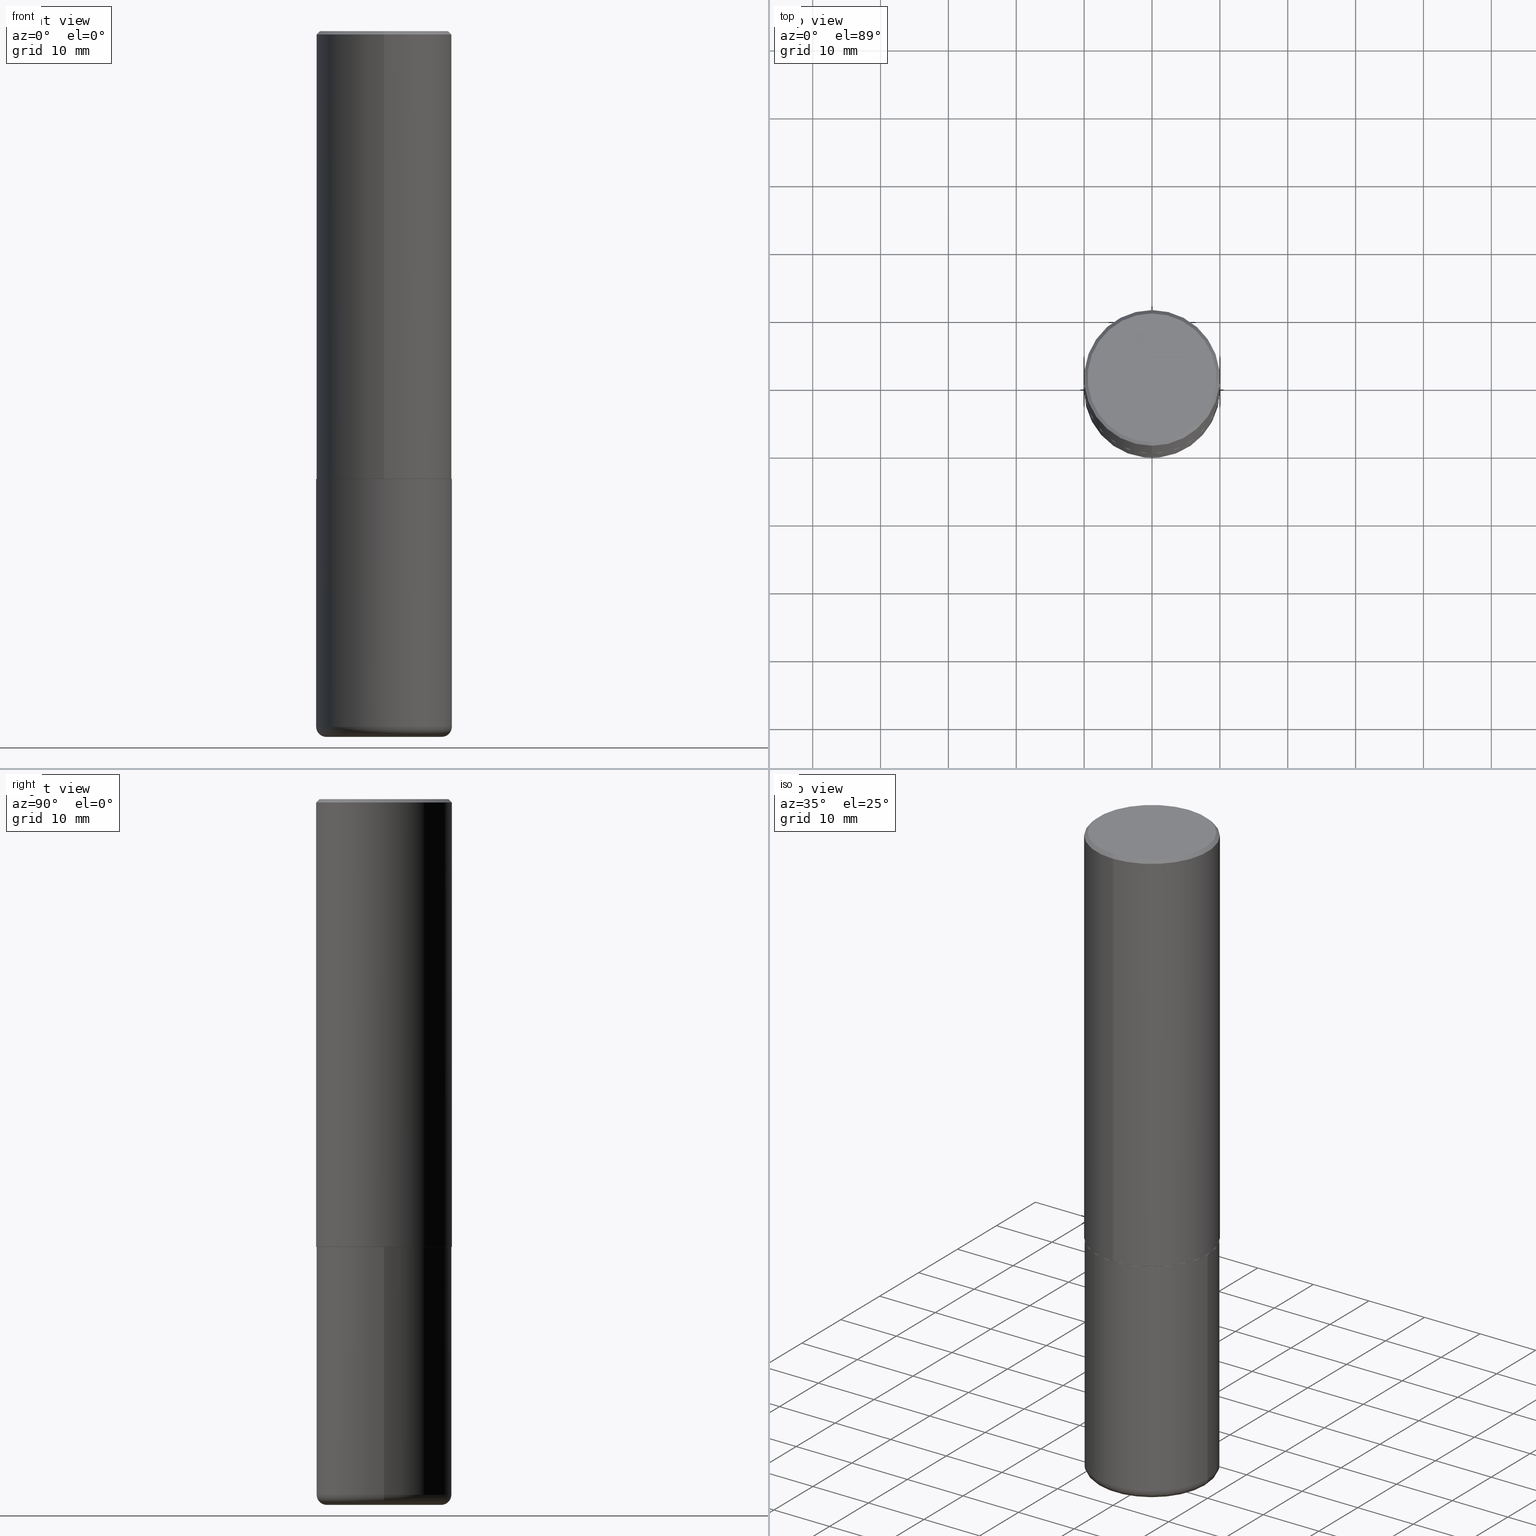
[diagram: canonical four-view strip — front | top / right | iso, engineering-drawing reading convention]
A machine part, canonical four-view strip (front | top / right | iso — engineering-drawing reading convention). The complete STEP part file that produces these views, byte-faithful:
ISO-10303-21;
HEADER;
FILE_DESCRIPTION (( 'STEP AP203' ),
    '1' );
FILE_NAME ('46923.STEP',
    '2024-03-05T08:56:37',
    ( '' ),
    ( '' ),
    'SwSTEP 2.0',
    'SolidWorks 2023',
    '' );
FILE_SCHEMA (( 'CONFIG_CONTROL_DESIGN' ));
ENDSEC;

DATA;
#1 = FACE_OUTER_BOUND ( 'NONE', #41, .T. ) ;
#2 = DIRECTION ( 'NONE',  ( 6.982962677686265133E-15, 1.000000000000000000, -3.491137977679279424E-15 ) ) ;
#3 = CARTESIAN_POINT ( 'NONE',  ( -2.632373081744935132E-15, -0.3736999999999997546, 1.514362516461610517E-15 ) ) ;
#4 = CC_DESIGN_PERSON_AND_ORGANIZATION_ASSIGNMENT ( #109, #318, ( #101 ) ) ;
#5 = AXIS2_PLACEMENT_3D ( 'NONE', #401, #110, #291 ) ;
#6 = CC_DESIGN_APPROVAL ( #410, ( #263 ) ) ;
#7 = ORIENTED_EDGE ( 'NONE', *, *, #339, .T. ) ;
#8 = DIRECTION ( 'NONE',  ( -6.982962677686265133E-15, -1.000000000000000000, 3.491137977679279424E-15 ) ) ;
#9 = CARTESIAN_POINT ( 'NONE',  ( 0.3346000000000000085, -1.663236965384708707E-14, -4.094500000000000028 ) ) ;
#10 = DIRECTION ( 'NONE',  ( 1.000000000000000000, -6.982962677686269866E-15, 0.000000000000000000 ) ) ;
#11 = LOCAL_TIME ( 3, 56, 37.00000000000000000, #223 ) ;
#12 = DIRECTION ( 'NONE',  ( 1.000000000000000000, -6.982962677686271444E-15, 0.000000000000000000 ) ) ;
#13 = ORIENTED_EDGE ( 'NONE', *, *, #126, .T. ) ;
#14 = ORIENTED_EDGE ( 'NONE', *, *, #202, .F. ) ;
#15 = DIRECTION ( 'NONE',  ( -2.445058808808776392E-29, 3.492068478421694670E-15, 1.000000000000000000 ) ) ;
#16 = APPLICATION_CONTEXT ( 'configuration controlled 3d designs of mechanical parts and assemblies' ) ;
#17 = CIRCLE ( 'NONE', #336, 0.3937000000000000499 ) ;
#18 = CONICAL_SURFACE ( 'NONE', #148, 0.3937000000000000499, 0.7853981633974476129 ) ;
#19 = CARTESIAN_POINT ( 'NONE',  ( 2.749192406205083217E-15, 0.3936999999999999389, -0.02000000000000146105 ) ) ;
#20 = EDGE_CURVE ( 'NONE', #342, #157, #78, .T. ) ;
#21 = DIRECTION ( 'NONE',  ( -6.982962677686265133E-15, -1.000000000000000000, 4.173946514383900962E-15 ) ) ;
#22 = CYLINDRICAL_SURFACE ( 'NONE', #165, 0.3937000000000000499 ) ;
#23 = APPROVAL_STATUS ( 'not_yet_approved' ) ;
#24 = AXIS2_PLACEMENT_3D ( 'NONE', #184, #240, #151 ) ;
#26 = ORIENTED_EDGE ( 'NONE', *, *, #104, .T. ) ;
#25 = CIRCLE ( 'NONE', #381, 0.3937000000000002720 ) ;
#27 = DIRECTION ( 'NONE',  ( -2.445058808808776392E-29, 3.492068478421694670E-15, 1.000000000000000000 ) ) ;
#28 = DIRECTION ( 'NONE',  ( -6.982962677686265922E-15, -1.000000000000000000, 3.492068478421695064E-15 ) ) ;
#29 = COORDINATED_UNIVERSAL_TIME_OFFSET ( 5, 0, .BEHIND. ) ;
#30 = ORIENTED_EDGE ( 'NONE', *, *, #72, .F. ) ;
#31 = ORIENTED_EDGE ( 'NONE', *, *, #126, .F. ) ;
#32 = DATE_TIME_ROLE ( 'creation_date' ) ;
#33 = ORIENTED_EDGE ( 'NONE', *, *, #273, .F. ) ;
#34 = CC_DESIGN_APPROVAL ( #204, ( #231 ) ) ;
#35 = VERTEX_POINT ( 'NONE', #50 ) ;
#36 = CALENDAR_DATE ( 2024, 5, 3 ) ;
#37 = EDGE_CURVE ( 'NONE', #176, #387, #296, .T. ) ;
#38 = CARTESIAN_POINT ( 'NONE',  ( 6.353240808808724474E-29, -9.073790734330933280E-15, -2.598400000000000265 ) ) ;
#39 = CARTESIAN_POINT ( 'NONE',  ( 2.797406750687515181E-15, 0.3937000000000001609, -1.374827359954621742E-15 ) ) ;
#40 = CARTESIAN_POINT ( 'NONE',  ( 4.890117617617573732E-31, -6.984136956843418330E-17, -0.02000000000000008715 ) ) ;
#41 = EDGE_LOOP ( 'NONE', ( #14, #123, #415, #192 ) ) ;
#42 = CARTESIAN_POINT ( 'NONE',  ( 9.868444820479501934E-29, -1.408952379476762952E-14, -4.035400000000000098 ) ) ;
#43 = AXIS2_PLACEMENT_3D ( 'NONE', #377, #15, #276 ) ;
#44 = CIRCLE ( 'NONE', #54, 0.3937000000000000499 ) ;
#45 = DIRECTION ( 'NONE',  ( 1.000000000000000000, -6.982962677686269077E-15, 4.883557194083114022E-29 ) ) ;
#46 = ADVANCED_FACE ( 'NONE', ( #66 ), #230, .F. ) ;
#47 = DIRECTION ( 'NONE',  ( -2.445058808808776111E-29, 3.492068478421695064E-15, 1.000000000000000000 ) ) ;
#48 = CARTESIAN_POINT ( 'NONE',  ( -2.749192406205084005E-15, -0.3937000000000001609, 1.374827359954621742E-15 ) ) ;
#49 = EDGE_CURVE ( 'NONE', #65, #398, #68, .T. ) ;
#50 = CARTESIAN_POINT ( 'NONE',  ( -2.749192406205021291E-15, -0.3937000000000093758, -2.597399999999999043 ) ) ;
#51 = VERTEX_POINT ( 'NONE', #82 ) ;
#52 = DIRECTION ( 'NONE',  ( -2.445468806185136597E-29, 3.491481338843145583E-15, 1.000000000000000000 ) ) ;
#53 =( NAMED_UNIT ( * ) PLANE_ANGLE_UNIT ( ) SI_UNIT ( $, .RADIAN. ) );
#54 = AXIS2_PLACEMENT_3D ( 'NONE', #99, #164, #8 ) ;
#55 = CARTESIAN_POINT ( 'NONE',  ( -0.3346000000000000085, -1.171204780091433423E-14, -4.035400000000000098 ) ) ;
#56 = CARTESIAN_POINT ( 'NONE',  ( 0.000000000000000000, 0.000000000000000000, 0.000000000000000000 ) ) ;
#57 = CARTESIAN_POINT ( 'NONE',  ( 9.868444820479501934E-29, -1.408952379476762952E-14, -4.035400000000000098 ) ) ;
#58 = EDGE_CURVE ( 'NONE', #65, #176, #380, .T. ) ;
#59 = ORIENTED_EDGE ( 'NONE', *, *, #224, .T. ) ;
#60 = DIRECTION ( 'NONE',  ( -2.445468806185136597E-29, 3.491481338843145583E-15, 1.000000000000000000 ) ) ;
#62 = ORIENTED_EDGE ( 'NONE', *, *, #190, .T. ) ;
#61 = AXIS2_PLACEMENT_3D ( 'NONE', #199, #261, #393 ) ;
#63 = FACE_OUTER_BOUND ( 'NONE', #191, .T. ) ;
#64 = APPROVAL_DATE_TIME ( #88, #204 ) ;
#65 = VERTEX_POINT ( 'NONE', #117 ) ;
#66 = FACE_OUTER_BOUND ( 'NONE', #113, .T. ) ;
#67 = APPROVAL_ROLE ( '' ) ;
#68 = CIRCLE ( 'NONE', #262, 0.3346000000000000085 ) ;
#69 = CARTESIAN_POINT ( 'NONE',  ( -5.119379194384959481E-45, 7.311571668294261102E-31, 2.093765260754239936E-16 ) ) ;
#70 = CC_DESIGN_SECURITY_CLASSIFICATION ( #263, ( #231 ) ) ;
#71 = DIRECTION ( 'NONE',  ( -2.445468806185136597E-29, 3.491481338843145583E-15, 1.000000000000000000 ) ) ;
#72 = EDGE_CURVE ( 'NONE', #51, #35, #310, .T. ) ;
#73 = DIRECTION ( 'NONE',  ( -6.982962677686266711E-15, -1.000000000000000000, 3.491481338843145583E-15 ) ) ;
#74 = AXIS2_PLACEMENT_3D ( 'NONE', #42, #260, #396 ) ;
#75 = CARTESIAN_POINT ( 'NONE',  ( 2.793854037008778575E-15, 0.3926999999999909452, -2.598400000000002041 ) ) ;
#76 = ORIENTED_EDGE ( 'NONE', *, *, #49, .T. ) ;
#77 = EDGE_CURVE ( 'NONE', #92, #322, #306, .T. ) ;
#78 = LINE ( 'NONE', #338, #79 ) ;
#79 = VECTOR ( 'NONE', #141, 39.37007874015748143 ) ;
#80 = AXIS2_PLACEMENT_3D ( 'NONE', #301, #73, #12 ) ;
#81 =( NAMED_UNIT ( * ) SI_UNIT ( $, .STERADIAN. ) SOLID_ANGLE_UNIT ( ) );
#82 = CARTESIAN_POINT ( 'NONE',  ( -2.742209443527332910E-15, -0.3927000000000090973, -2.598399999999998489 ) ) ;
#83 = CC_DESIGN_PERSON_AND_ORGANIZATION_ASSIGNMENT ( #91, #289, ( #263 ) ) ;
#84 = CARTESIAN_POINT ( 'NONE',  ( 6.353240808808724474E-29, -9.073790734330933280E-15, -2.598400000000000265 ) ) ;
#85 = EDGE_LOOP ( 'NONE', ( #163, #76, #7, #368 ) ) ;
#86 = CARTESIAN_POINT ( 'NONE',  ( -0.3937000000000000499, 2.797406750687514786E-15, -1.936584745033356735E-29 ) ) ;
#87 = DIRECTION ( 'NONE',  ( -2.445058808808776392E-29, 3.492068478421694670E-15, 1.000000000000000000 ) ) ;
#88 = DATE_AND_TIME ( #154, #217 ) ;
#90 = ORIENTED_EDGE ( 'NONE', *, *, #229, .T. ) ;
#89 = VECTOR ( 'NONE', #183, 39.37007874015748143 ) ;
#91 = PERSON_AND_ORGANIZATION ( #346, #127 ) ;
#92 = VERTEX_POINT ( 'NONE', #341 ) ;
#93 = FACE_OUTER_BOUND ( 'NONE', #243, .T. ) ;
#94 = ORIENTED_EDGE ( 'NONE', *, *, #20, .T. ) ;
#95 = DIRECTION ( 'NONE',  ( 2.445058808808776392E-29, -3.492068478421694670E-15, -1.000000000000000000 ) ) ;
#96 = CIRCLE ( 'NONE', #111, 0.3926999999999999935 ) ;
#97 = ADVANCED_FACE ( 'NONE', ( #374 ), #215, .T. ) ;
#98 = ADVANCED_FACE ( 'NONE', ( #411 ), #119, .F. ) ;
#99 = CARTESIAN_POINT ( 'NONE',  ( 4.890117617617573732E-31, -6.984136956843418330E-17, -0.02000000000000008715 ) ) ;
#100 = CARTESIAN_POINT ( 'NONE',  ( 0.3937000000000000499, -1.182145751705511584E-14, -2.598400000000000265 ) ) ;
#101 = PRODUCT ( '46923', '46923', '', ( #309 ) ) ;
#102 = AXIS2_PLACEMENT_3D ( 'NONE', #55, #175, #345 ) ;
#103 = DIRECTION ( 'NONE',  ( -2.445468806185136597E-29, 3.491481338843145583E-15, 1.000000000000000000 ) ) ;
#104 = EDGE_CURVE ( 'NONE', #387, #176, #216, .T. ) ;
#105 = VERTEX_POINT ( 'NONE', #272 ) ;
#106 = ORIENTED_EDGE ( 'NONE', *, *, #37, .T. ) ;
#107 = DIRECTION ( 'NONE',  ( -6.982962677686265133E-15, -1.000000000000000000, 4.173946514383900962E-15 ) ) ;
#108 = CC_DESIGN_PERSON_AND_ORGANIZATION_ASSIGNMENT ( #286, #152, ( #231 ) ) ;
#109 = PERSON_AND_ORGANIZATION ( #346, #127 ) ;
#110 = DIRECTION ( 'NONE',  ( -2.445468806185136597E-29, 3.491481338843145583E-15, 1.000000000000000000 ) ) ;
#111 = AXIS2_PLACEMENT_3D ( 'NONE', #84, #87, #21 ) ;
#112 = AXIS2_PLACEMENT_3D ( 'NONE', #257, #388, #153 ) ;
#113 = EDGE_LOOP ( 'NONE', ( #31, #285 ) ) ;
#114 = DIRECTION ( 'NONE',  ( 1.000000000000000000, -6.982962677686267499E-15, 0.000000000000000000 ) ) ;
#115 = DIRECTION ( 'NONE',  ( 1.000000000000000000, 0.000000000000000000, 0.000000000000000000 ) ) ;
#116 = DIRECTION ( 'NONE',  ( 6.982962677686265922E-15, 1.000000000000000000, -3.492068478421695064E-15 ) ) ;
#117 = CARTESIAN_POINT ( 'NONE',  ( -0.3346000000000000085, -1.160525569606004165E-14, -4.094500000000000028 ) ) ;
#118 =( GEOMETRIC_REPRESENTATION_CONTEXT ( 3 ) GLOBAL_UNCERTAINTY_ASSIGNED_CONTEXT ( ( #298 ) ) GLOBAL_UNIT_ASSIGNED_CONTEXT ( ( #305, #53, #81 ) ) REPRESENTATION_CONTEXT ( 'NONE', 'WORKASPACE' ) );
#119 = PLANE ( 'NONE',  #178 ) ;
#120 = EDGE_CURVE ( 'NONE', #92, #376, #280, .T. ) ;
#121 = DIRECTION ( 'NONE',  ( -6.982962677686265922E-15, -1.000000000000000000, 3.492068478421695064E-15 ) ) ;
#122 = CC_DESIGN_DATE_AND_TIME_ASSIGNMENT ( #378, #359, ( #263 ) ) ;
#123 = ORIENTED_EDGE ( 'NONE', *, *, #120, .F. ) ;
#124 = DATE_AND_TIME ( #36, #185 ) ;
#125 = CONICAL_SURFACE ( 'NONE', #363, 0.3937000000000000499, 0.7853981633974476129 ) ;
#126 = EDGE_CURVE ( 'NONE', #51, #342, #96, .T. ) ;
#127 = ORGANIZATION ( 'UNSPECIFIED', 'UNSPECIFIED', '' ) ;
#128 = LINE ( 'NONE', #385, #179 ) ;
#129 = COORDINATED_UNIVERSAL_TIME_OFFSET ( 5, 0, .BEHIND. ) ;
#130 = ORIENTED_EDGE ( 'NONE', *, *, #167, .F. ) ;
#131 = FACE_OUTER_BOUND ( 'NONE', #353, .T. ) ;
#132 = CARTESIAN_POINT ( 'NONE',  ( 0.3936999999999999389, -1.683871620097271431E-14, -4.035400000000000098 ) ) ;
#133 = VECTOR ( 'NONE', #47, 39.37007874015748143 ) ;
#134 = ORIENTED_EDGE ( 'NONE', *, *, #334, .T. ) ;
#135 = CARTESIAN_POINT ( 'NONE',  ( 6.353240808808724474E-29, -9.073790734330933280E-15, -2.598400000000000265 ) ) ;
#136 = LINE ( 'NONE', #39, #133 ) ;
#137 = VECTOR ( 'NONE', #329, 39.37007874015748143 ) ;
#138 = FACE_OUTER_BOUND ( 'NONE', #241, .T. ) ;
#139 = APPROVAL ( #23, 'UNSPECIFIED' ) ;
#140 = ORIENTED_EDGE ( 'NONE', *, *, #77, .F. ) ;
#141 = DIRECTION ( 'NONE',  ( 5.024295867789263036E-15, 0.7071067811867189912, 0.7071067811863760433 ) ) ;
#142 = ADVANCED_FACE ( 'NONE', ( #404 ), #22, .T. ) ;
#143 = DIRECTION ( 'NONE',  ( -2.445468806185136597E-29, 3.491481338843145583E-15, 1.000000000000000000 ) ) ;
#144 = AXIS2_PLACEMENT_3D ( 'NONE', #340, #348, #413 ) ;
#145 = EDGE_CURVE ( 'NONE', #316, #105, #17, .T. ) ;
#146 = CARTESIAN_POINT ( 'NONE',  ( 2.797406750687547524E-15, 0.3936999999999912236, -2.597400000000002152 ) ) ;
#147 = DIRECTION ( 'NONE',  ( 1.000000000000000000, -6.982962677686265922E-15, 4.876176775795935793E-29 ) ) ;
#148 = AXIS2_PLACEMENT_3D ( 'NONE', #294, #95, #2 ) ;
#149 = CONICAL_SURFACE ( 'NONE', #193, 0.3926999999999999935, 0.7853981633976873100 ) ;
#150 = EDGE_LOOP ( 'NONE', ( #194, #270, #326, #237 ) ) ;
#151 = DIRECTION ( 'NONE',  ( -6.982962677686265922E-15, -1.000000000000000000, 4.163344669033672479E-15 ) ) ;
#152 = PERSON_AND_ORGANIZATION_ROLE ( 'design_supplier' ) ;
#153 = DIRECTION ( 'NONE',  ( -1.000000000000000000, 6.982962677686265922E-15, -4.876176775795935793E-29 ) ) ;
#154 = CALENDAR_DATE ( 2024, 5, 3 ) ;
#155 = SECURITY_CLASSIFICATION_LEVEL ( 'unclassified' ) ;
#156 = TOROIDAL_SURFACE ( 'NONE', #331, 0.3346000000000000085, 0.05909999999999995812 ) ;
#157 = VERTEX_POINT ( 'NONE', #146 ) ;
#158 = COORDINATED_UNIVERSAL_TIME_OFFSET ( 5, 0, .BEHIND. ) ;
#159 = DIRECTION ( 'NONE',  ( -4.851104656540959542E-15, -0.7071067811865493491, -0.7071067811865454633 ) ) ;
#160 = EDGE_CURVE ( 'NONE', #176, #105, #278, .T. ) ;
#161 = CYLINDRICAL_SURFACE ( 'NONE', #355, 0.3937000000000000499 ) ;
#162 = DIRECTION ( 'NONE',  ( -2.445058808808776392E-29, 3.492068478421694670E-15, 1.000000000000000000 ) ) ;
#163 = ORIENTED_EDGE ( 'NONE', *, *, #58, .F. ) ;
#164 = DIRECTION ( 'NONE',  ( -2.445058808808776392E-29, 3.492068478421694670E-15, 1.000000000000000000 ) ) ;
#165 = AXIS2_PLACEMENT_3D ( 'NONE', #351, #60, #147 ) ;
#166 = CIRCLE ( 'NONE', #288, 0.3926999999999999935 ) ;
#167 = EDGE_CURVE ( 'NONE', #35, #157, #330, .T. ) ;
#168 = DIRECTION ( 'NONE',  ( -2.445058808808776392E-29, 3.492068478421694670E-15, 1.000000000000000000 ) ) ;
#169 = DIMENSIONAL_EXPONENTS ( 1.000000000000000000, 0.000000000000000000, 0.000000000000000000, 0.000000000000000000, 0.000000000000000000, 0.000000000000000000, 0.000000000000000000 ) ;
#170 = ORIENTED_EDGE ( 'NONE', *, *, #49, .F. ) ;
#171 = CARTESIAN_POINT ( 'NONE',  ( 2.749192406205083217E-15, 0.3936999999999999389, -0.02000000000000146105 ) ) ;
#172 = CLOSED_SHELL ( 'NONE', ( #357, #97, #206, #181, #195, #375, #46, #98 ) ) ;
#173 = CIRCLE ( 'NONE', #258, 0.3937000000000000499 ) ;
#174 = ADVANCED_FACE ( 'NONE', ( #283 ), #220, .T. ) ;
#175 = DIRECTION ( 'NONE',  ( 7.105427357601001859E-15, 1.000000000000000000, -3.491481338843145583E-15 ) ) ;
#176 = VERTEX_POINT ( 'NONE', #177 ) ;
#177 = CARTESIAN_POINT ( 'NONE',  ( -0.3936999999999999389, -1.129211704408011394E-14, -4.035400000000000098 ) ) ;
#178 = AXIS2_PLACEMENT_3D ( 'NONE', #406, #372, #116 ) ;
#179 = VECTOR ( 'NONE', #159, 39.37007874015748854 ) ;
#180 = DIRECTION ( 'NONE',  ( -2.445058808808776392E-29, 3.492068478421694670E-15, 1.000000000000000000 ) ) ;
#181 = ADVANCED_FACE ( 'NONE', ( #1 ), #125, .T. ) ;
#182 = DIRECTION ( 'NONE',  ( -2.445468806185136597E-29, 3.491481338843145583E-15, 1.000000000000000000 ) ) ;
#183 = DIRECTION ( 'NONE',  ( -2.445468806185136877E-29, 3.491481338843145188E-15, 1.000000000000000000 ) ) ;
#184 = CARTESIAN_POINT ( 'NONE',  ( 6.350795749999916474E-29, -9.070298665852512644E-15, -2.597400000000000375 ) ) ;
#185 = LOCAL_TIME ( 3, 56, 37.00000000000000000, #352 ) ;
#186 = CALENDAR_DATE ( 2024, 5, 3 ) ;
#187 = PERSON_AND_ORGANIZATION_ROLE ( 'creator' ) ;
#188 = ORIENTED_EDGE ( 'NONE', *, *, #255, .F. ) ;
#189 = DIRECTION ( 'NONE',  ( 2.445058808808776392E-29, -3.492068478421694670E-15, -1.000000000000000000 ) ) ;
#190 = EDGE_CURVE ( 'NONE', #376, #92, #307, .T. ) ;
#191 = EDGE_LOOP ( 'NONE', ( #290, #268, #403, #218 ) ) ;
#192 = ORIENTED_EDGE ( 'NONE', *, *, #407, .T. ) ;
#193 = AXIS2_PLACEMENT_3D ( 'NONE', #196, #327, #365 ) ;
#194 = ORIENTED_EDGE ( 'NONE', *, *, #167, .T. ) ;
#195 = ADVANCED_FACE ( 'NONE', ( #63 ), #287, .T. ) ;
#196 = CARTESIAN_POINT ( 'NONE',  ( 6.353240808808724474E-29, -9.073790734330933280E-15, -2.598400000000000265 ) ) ;
#197 = EDGE_LOOP ( 'NONE', ( #358, #62 ) ) ;
#198 = FACE_OUTER_BOUND ( 'NONE', #85, .T. ) ;
#199 = CARTESIAN_POINT ( 'NONE',  ( 4.890117617617573732E-31, -6.984136956843418330E-17, -0.02000000000000008715 ) ) ;
#200 = VECTOR ( 'NONE', #245, 39.37007874015748854 ) ;
#201 = AXIS2_PLACEMENT_3D ( 'NONE', #56, #275, #115 ) ;
#202 = EDGE_CURVE ( 'NONE', #376, #269, #128, .T. ) ;
#203 = DIRECTION ( 'NONE',  ( -2.445468806185136597E-29, 3.491481338843145583E-15, 1.000000000000000000 ) ) ;
#204 = APPROVAL ( #253, 'UNSPECIFIED' ) ;
#205 = CARTESIAN_POINT ( 'NONE',  ( 6.354306145991459756E-29, -9.072265110850031044E-15, -2.598400000000000265 ) ) ;
#206 = ADVANCED_FACE ( 'NONE', ( #93 ), #18, .T. ) ;
#207 = APPROVAL_PERSON_ORGANIZATION ( #356, #139, #281 ) ;
#208 = ORIENTED_EDGE ( 'NONE', *, *, #402, .F. ) ;
#209 =( LENGTH_UNIT ( ) NAMED_UNIT ( * ) SI_UNIT ( $, .METRE. ) );
#210 = ADVANCED_FACE ( 'NONE', ( #131 ), #354, .F. ) ;
#211 = CARTESIAN_POINT ( 'NONE',  ( 6.354306145991459756E-29, -9.072265110850031044E-15, -2.598400000000000265 ) ) ;
#212 = ORIENTED_EDGE ( 'NONE', *, *, #145, .F. ) ;
#213 = DIRECTION ( 'NONE',  ( 1.000000000000000000, -6.982962677686269866E-15, 0.000000000000000000 ) ) ;
#214 = ORIENTED_EDGE ( 'NONE', *, *, #190, .F. ) ;
#215 = CYLINDRICAL_SURFACE ( 'NONE', #43, 0.3937000000000001609 ) ;
#216 = CIRCLE ( 'NONE', #343, 0.3937000000000000499 ) ;
#217 = LOCAL_TIME ( 3, 56, 37.00000000000000000, #158 ) ;
#218 = ORIENTED_EDGE ( 'NONE', *, *, #407, .F. ) ;
#219 = LENGTH_MEASURE_WITH_UNIT ( LENGTH_MEASURE( 0.02539999999999999897 ), #209 );
#220 = PLANE ( 'NONE',  #144 ) ;
#221 = EDGE_LOOP ( 'NONE', ( #188, #170 ) ) ;
#222 = CARTESIAN_POINT ( 'NONE',  ( 1.001297202692504215E-28, -1.429587034189326149E-14, -4.094500000000000028 ) ) ;
#223 = COORDINATED_UNIVERSAL_TIME_OFFSET ( 5, 0, .BEHIND. ) ;
#224 = EDGE_CURVE ( 'NONE', #387, #316, #412, .T. ) ;
#225 = PERSON_AND_ORGANIZATION ( #346, #127 ) ;
#226 = PERSON_AND_ORGANIZATION ( #346, #127 ) ;
#227 = ORIENTED_EDGE ( 'NONE', *, *, #202, .T. ) ;
#228 = MANIFOLD_SOLID_BREP ( 'Body-Move/Copy2[1]', #409 ) ;
#229 = EDGE_CURVE ( 'NONE', #342, #51, #166, .T. ) ;
#230 = PLANE ( 'NONE',  #394 ) ;
#231 = PRODUCT_DEFINITION_FORMATION_WITH_SPECIFIED_SOURCE ( 'ANY', '', #101, .NOT_KNOWN. ) ;
#232 = CARTESIAN_POINT ( 'NONE',  ( 0.3937000000000000499, -2.749192406205083217E-15, 1.919750796630860172E-29 ) ) ;
#233 = CARTESIAN_POINT ( 'NONE',  ( 1.001297202692504215E-28, -1.429587034189326149E-14, -4.094500000000000028 ) ) ;
#234 = DIRECTION ( 'NONE',  ( 1.000000000000000000, -6.982962677686265922E-15, 4.876176775795935793E-29 ) ) ;
#235 = CIRCLE ( 'NONE', #61, 0.3937000000000000499 ) ;
#236 = DIRECTION ( 'NONE',  ( -2.445468806185136597E-29, 3.491481338843145583E-15, 1.000000000000000000 ) ) ;
#237 = ORIENTED_EDGE ( 'NONE', *, *, #265, .F. ) ;
#238 = FACE_OUTER_BOUND ( 'NONE', #274, .T. ) ;
#239 = ORIENTED_EDGE ( 'NONE', *, *, #72, .T. ) ;
#240 = DIRECTION ( 'NONE',  ( -2.445058808808776392E-29, 3.492068478421694670E-15, 1.000000000000000000 ) ) ;
#241 = EDGE_LOOP ( 'NONE', ( #369, #367, #293, #256 ) ) ;
#242 = ADVANCED_FACE ( 'NONE', ( #198 ), #323, .T. ) ;
#243 = EDGE_LOOP ( 'NONE', ( #214, #227, #134, #140 ) ) ;
#244 = PRODUCT_DEFINITION ( 'UNKNOWN', '', #231, #383 ) ;
#245 = DIRECTION ( 'NONE',  ( 4.937700262164543309E-15, 0.7071067811865444641, -0.7071067811865503483 ) ) ;
#246 = APPROVAL_PERSON_ORGANIZATION ( #325, #410, #67 ) ;
#247 = CALENDAR_DATE ( 2024, 5, 3 ) ;
#248 = EDGE_LOOP ( 'NONE', ( #13, #94, #130, #30 ) ) ;
#249 = DIRECTION ( 'NONE',  ( -6.982962677686265922E-15, -1.000000000000000000, 3.492068478421695064E-15 ) ) ;
#250 = ORIENTED_EDGE ( 'NONE', *, *, #160, .F. ) ;
#251 = AXIS2_PLACEMENT_3D ( 'NONE', #233, #103, #10 ) ;
#252 = DATE_AND_TIME ( #186, #370 ) ;
#253 = APPROVAL_STATUS ( 'not_yet_approved' ) ;
#254 = ADVANCED_BREP_SHAPE_REPRESENTATION ( '46923', ( #228, #366, #201 ), #118 ) ;
#255 = EDGE_CURVE ( 'NONE', #398, #65, #303, .T. ) ;
#256 = ORIENTED_EDGE ( 'NONE', *, *, #339, .F. ) ;
#257 = CARTESIAN_POINT ( 'NONE',  ( 6.354306145991459756E-29, -9.072265110850031044E-15, -2.598400000000000265 ) ) ;
#258 = AXIS2_PLACEMENT_3D ( 'NONE', #205, #236, #399 ) ;
#259 = CARTESIAN_POINT ( 'NONE',  ( 6.350795749999916474E-29, -9.070298665852512644E-15, -2.597400000000000375 ) ) ;
#260 = DIRECTION ( 'NONE',  ( -2.445468806185136597E-29, 3.491481338843145583E-15, 1.000000000000000000 ) ) ;
#261 = DIRECTION ( 'NONE',  ( -2.445058808808776392E-29, 3.492068478421694670E-15, 1.000000000000000000 ) ) ;
#262 = AXIS2_PLACEMENT_3D ( 'NONE', #222, #182, #213 ) ;
#263 = SECURITY_CLASSIFICATION ( '', '', #155 ) ;
#264 = FACE_OUTER_BOUND ( 'NONE', #248, .T. ) ;
#265 = EDGE_CURVE ( 'NONE', #35, #269, #333, .T. ) ;
#266 = ORIENTED_EDGE ( 'NONE', *, *, #20, .F. ) ;
#267 = PRODUCT_DEFINITION_SHAPE ( 'NONE', 'NONE',  #244 ) ;
#268 = ORIENTED_EDGE ( 'NONE', *, *, #402, .T. ) ;
#269 = VERTEX_POINT ( 'NONE', #297 ) ;
#270 = ORIENTED_EDGE ( 'NONE', *, *, #320, .T. ) ;
#271 = AXIS2_PLACEMENT_3D ( 'NONE', #379, #362, #317 ) ;
#272 = CARTESIAN_POINT ( 'NONE',  ( -0.3937000000000000499, -8.783487702121316283E-15, -2.598400000000000265 ) ) ;
#273 = EDGE_CURVE ( 'NONE', #105, #316, #173, .T. ) ;
#274 = EDGE_LOOP ( 'NONE', ( #266, #90, #239, #208 ) ) ;
#275 = DIRECTION ( 'NONE',  ( 0.000000000000000000, 0.000000000000000000, 1.000000000000000000 ) ) ;
#276 = DIRECTION ( 'NONE',  ( -6.982962677686265922E-15, -1.000000000000000000, 3.492068478421694670E-15 ) ) ;
#277 = APPLICATION_PROTOCOL_DEFINITION ( 'international standard', 'config_control_design', 1994, #16 ) ;
#278 = LINE ( 'NONE', #86, #389 ) ;
#279 = DIRECTION ( 'NONE',  ( -2.445468806185136877E-29, 3.491481338843145188E-15, 1.000000000000000000 ) ) ;
#280 = CIRCLE ( 'NONE', #361, 0.3736999999999997546 ) ;
#281 = APPROVAL_ROLE ( '' ) ;
#282 = DIRECTION ( 'NONE',  ( -6.982962677686265133E-15, -1.000000000000000000, 4.173946514383900962E-15 ) ) ;
#283 = FACE_OUTER_BOUND ( 'NONE', #221, .T. ) ;
#284 = CALENDAR_DATE ( 2024, 5, 3 ) ;
#285 = ORIENTED_EDGE ( 'NONE', *, *, #229, .F. ) ;
#286 = PERSON_AND_ORGANIZATION ( #346, #127 ) ;
#287 = CYLINDRICAL_SURFACE ( 'NONE', #271, 0.3937000000000001609 ) ;
#288 = AXIS2_PLACEMENT_3D ( 'NONE', #312, #27, #282 ) ;
#289 = PERSON_AND_ORGANIZATION_ROLE ( 'classification_officer' ) ;
#290 = ORIENTED_EDGE ( 'NONE', *, *, #320, .F. ) ;
#291 = DIRECTION ( 'NONE',  ( 1.000000000000000000, -6.982962677686267499E-15, 0.000000000000000000 ) ) ;
#292 = APPLICATION_PROTOCOL_DEFINITION ( 'international standard', 'config_control_design', 1994, #416 ) ;
#293 = ORIENTED_EDGE ( 'NONE', *, *, #104, .F. ) ;
#294 = CARTESIAN_POINT ( 'NONE',  ( 4.890117617617573732E-31, -6.984136956843418330E-17, -0.02000000000000008715 ) ) ;
#295 = ADVANCED_FACE ( 'NONE', ( #392 ), #161, .T. ) ;
#296 = CIRCLE ( 'NONE', #5, 0.3937000000000000499 ) ;
#297 = CARTESIAN_POINT ( 'NONE',  ( -2.700978061722651252E-15, -0.3937000000000001054, -0.01999999999999870978 ) ) ;
#298 = UNCERTAINTY_MEASURE_WITH_UNIT (LENGTH_MEASURE( 1.000000000000000082E-05 ), #305, 'distance_accuracy_value', 'NONE');
#299 = DIRECTION ( 'NONE',  ( -2.445058808808776392E-29, 3.492068478421694670E-15, 1.000000000000000000 ) ) ;
#300 = CC_DESIGN_PERSON_AND_ORGANIZATION_ASSIGNMENT ( #225, #315, ( #244 ) ) ;
#301 = CARTESIAN_POINT ( 'NONE',  ( 0.3346000000000000085, -1.642602310672145667E-14, -4.035400000000000098 ) ) ;
#302 = VECTOR ( 'NONE', #313, 39.37007874015748143 ) ;
#303 = CIRCLE ( 'NONE', #251, 0.3346000000000000085 ) ;
#304 = CC_DESIGN_DATE_AND_TIME_ASSIGNMENT ( #252, #32, ( #244 ) ) ;
#305 =( CONVERSION_BASED_UNIT ( 'INCH', #219 ) LENGTH_UNIT ( ) NAMED_UNIT ( #169 ) );
#306 = LINE ( 'NONE', #19, #200 ) ;
#307 = CIRCLE ( 'NONE', #390, 0.3736999999999997546 ) ;
#308 = CARTESIAN_POINT ( 'NONE',  ( -5.119379194384959481E-45, 7.311571668294261102E-31, 2.093765260754239936E-16 ) ) ;
#309 = MECHANICAL_CONTEXT ( 'NONE', #16, 'mechanical' ) ;
#310 = LINE ( 'NONE', #408, #302 ) ;
#311 = DATE_AND_TIME ( #247, #364 ) ;
#312 = CARTESIAN_POINT ( 'NONE',  ( 6.353240808808724474E-29, -9.073790734330933280E-15, -2.598400000000000265 ) ) ;
#313 = DIRECTION ( 'NONE',  ( -4.937700262165728178E-15, -0.7071067811867141062, 0.7071067811863809283 ) ) ;
#314 = CC_DESIGN_APPROVAL ( #139, ( #244 ) ) ;
#315 = PERSON_AND_ORGANIZATION_ROLE ( 'creator' ) ;
#316 = VERTEX_POINT ( 'NONE', #100 ) ;
#317 = DIRECTION ( 'NONE',  ( -6.982962677686265922E-15, -1.000000000000000000, 3.492068478421694670E-15 ) ) ;
#318 = PERSON_AND_ORGANIZATION_ROLE ( 'design_owner' ) ;
#319 = ORIENTED_EDGE ( 'NONE', *, *, #160, .T. ) ;
#320 = EDGE_CURVE ( 'NONE', #157, #322, #136, .T. ) ;
#321 = APPROVAL_DATE_TIME ( #311, #139 ) ;
#322 = VERTEX_POINT ( 'NONE', #171 ) ;
#323 = TOROIDAL_SURFACE ( 'NONE', #74, 0.3346000000000000085, 0.05909999999999995812 ) ;
#324 = DIRECTION ( 'NONE',  ( -2.445058808808775831E-29, 3.492068478421695064E-15, 1.000000000000000000 ) ) ;
#325 = PERSON_AND_ORGANIZATION ( #346, #127 ) ;
#326 = ORIENTED_EDGE ( 'NONE', *, *, #334, .F. ) ;
#327 = DIRECTION ( 'NONE',  ( -2.445058808808776392E-29, 3.492068478421694670E-15, 1.000000000000000000 ) ) ;
#328 = EDGE_LOOP ( 'NONE', ( #250, #106, #59, #33 ) ) ;
#329 = DIRECTION ( 'NONE',  ( -2.445058808808776111E-29, 3.492068478421695064E-15, 1.000000000000000000 ) ) ;
#330 = CIRCLE ( 'NONE', #24, 0.3937000000000002720 ) ;
#331 = AXIS2_PLACEMENT_3D ( 'NONE', #332, #203, #45 ) ;
#332 = CARTESIAN_POINT ( 'NONE',  ( 9.868444820479501934E-29, -1.408952379476762952E-14, -4.035400000000000098 ) ) ;
#333 = LINE ( 'NONE', #48, #137 ) ;
#334 = EDGE_CURVE ( 'NONE', #269, #322, #44, .T. ) ;
#335 = CARTESIAN_POINT ( 'NONE',  ( 0.000000000000000000, 0.000000000000000000, 0.000000000000000000 ) ) ;
#336 = AXIS2_PLACEMENT_3D ( 'NONE', #211, #52, #114 ) ;
#337 = CONICAL_SURFACE ( 'NONE', #395, 0.3926999999999999935, 0.7853981633976873100 ) ;
#338 = CARTESIAN_POINT ( 'NONE',  ( 2.790301323329976493E-15, 0.3926999999999909452, -2.598400000000002041 ) ) ;
#339 = EDGE_CURVE ( 'NONE', #398, #387, #418, .T. ) ;
#340 = CARTESIAN_POINT ( 'NONE',  ( 1.001297202692504215E-28, -1.429587034189326149E-14, -4.094500000000000028 ) ) ;
#341 = CARTESIAN_POINT ( 'NONE',  ( 2.679362779428219524E-15, 0.3736999999999997546, -1.095609464310762333E-15 ) ) ;
#342 = VERTEX_POINT ( 'NONE', #75 ) ;
#343 = AXIS2_PLACEMENT_3D ( 'NONE', #57, #143, #373 ) ;
#344 = APPROVAL_PERSON_ORGANIZATION ( #350, #204, #384 ) ;
#345 = DIRECTION ( 'NONE',  ( -1.000000000000000000, 7.105427357601001859E-15, 0.000000000000000000 ) ) ;
#346 = PERSON ( 'UNSPECIFIED', 'UNSPECIFIED', 'UNSPECIFIED', ('UNSPECIFIED'), ('UNSPECIFIED'), ('UNSPECIFIED') ) ;
#347 = ORIENTED_EDGE ( 'NONE', *, *, #145, .T. ) ;
#348 = DIRECTION ( 'NONE',  ( 2.438088387897960049E-29, -3.491481338843145188E-15, -1.000000000000000000 ) ) ;
#349 = ADVANCED_FACE ( 'NONE', ( #138 ), #156, .T. ) ;
#350 = PERSON_AND_ORGANIZATION ( #346, #127 ) ;
#351 = CARTESIAN_POINT ( 'NONE',  ( 0.000000000000000000, 0.000000000000000000, 0.000000000000000000 ) ) ;
#352 = COORDINATED_UNIVERSAL_TIME_OFFSET ( 5, 0, .BEHIND. ) ;
#353 = EDGE_LOOP ( 'NONE', ( #347, #405 ) ) ;
#354 = PLANE ( 'NONE',  #112 ) ;
#355 = AXIS2_PLACEMENT_3D ( 'NONE', #335, #71, #234 ) ;
#356 = PERSON_AND_ORGANIZATION ( #346, #127 ) ;
#357 = ADVANCED_FACE ( 'NONE', ( #264 ), #337, .T. ) ;
#358 = ORIENTED_EDGE ( 'NONE', *, *, #120, .T. ) ;
#359 = DATE_TIME_ROLE ( 'classification_date' ) ;
#360 = DIRECTION ( 'NONE',  ( 6.982962677686265133E-15, 1.000000000000000000, -3.491137977679279424E-15 ) ) ;
#361 = AXIS2_PLACEMENT_3D ( 'NONE', #308, #180, #28 ) ;
#362 = DIRECTION ( 'NONE',  ( -2.445058808808776392E-29, 3.492068478421694670E-15, 1.000000000000000000 ) ) ;
#363 = AXIS2_PLACEMENT_3D ( 'NONE', #40, #189, #360 ) ;
#364 = LOCAL_TIME ( 3, 56, 37.00000000000000000, #129 ) ;
#365 = DIRECTION ( 'NONE',  ( -6.982962677686265133E-15, -1.000000000000000000, 4.173946514383900962E-15 ) ) ;
#366 = MANIFOLD_SOLID_BREP ( 'Body-Move/Copy2[2]', #172 ) ;
#367 = ORIENTED_EDGE ( 'NONE', *, *, #58, .T. ) ;
#368 = ORIENTED_EDGE ( 'NONE', *, *, #37, .F. ) ;
#369 = ORIENTED_EDGE ( 'NONE', *, *, #255, .T. ) ;
#370 = LOCAL_TIME ( 3, 56, 37.00000000000000000, #29 ) ;
#371 = EDGE_LOOP ( 'NONE', ( #26, #319, #212, #400 ) ) ;
#372 = DIRECTION ( 'NONE',  ( 2.445058808808775831E-29, -3.492068478421695064E-15, -1.000000000000000000 ) ) ;
#373 = DIRECTION ( 'NONE',  ( 1.000000000000000000, -6.982962677686267499E-15, 0.000000000000000000 ) ) ;
#374 = FACE_OUTER_BOUND ( 'NONE', #150, .T. ) ;
#375 = ADVANCED_FACE ( 'NONE', ( #238 ), #149, .T. ) ;
#376 = VERTEX_POINT ( 'NONE', #3 ) ;
#377 = CARTESIAN_POINT ( 'NONE',  ( 0.000000000000000000, 0.000000000000000000, 0.000000000000000000 ) ) ;
#378 = DATE_AND_TIME ( #284, #11 ) ;
#379 = CARTESIAN_POINT ( 'NONE',  ( 0.000000000000000000, 0.000000000000000000, 0.000000000000000000 ) ) ;
#380 = CIRCLE ( 'NONE', #102, 0.05909999999999992343 ) ;
#381 = AXIS2_PLACEMENT_3D ( 'NONE', #259, #299, #391 ) ;
#382 = SHAPE_DEFINITION_REPRESENTATION ( #267, #254 ) ;
#383 = DESIGN_CONTEXT ( 'detailed design', #416, 'design' ) ;
#384 = APPROVAL_ROLE ( '' ) ;
#385 = CARTESIAN_POINT ( 'NONE',  ( -2.700978061722651252E-15, -0.3937000000000001054, -0.01999999999999870978 ) ) ;
#386 = CC_DESIGN_PERSON_AND_ORGANIZATION_ASSIGNMENT ( #226, #187, ( #231 ) ) ;
#387 = VERTEX_POINT ( 'NONE', #132 ) ;
#388 = DIRECTION ( 'NONE',  ( 2.438088387897960049E-29, -3.491481338843145188E-15, -1.000000000000000000 ) ) ;
#389 = VECTOR ( 'NONE', #279, 39.37007874015748143 ) ;
#390 = AXIS2_PLACEMENT_3D ( 'NONE', #69, #162, #121 ) ;
#391 = DIRECTION ( 'NONE',  ( -6.982962677686265922E-15, -1.000000000000000000, 4.163344669033672479E-15 ) ) ;
#392 = FACE_OUTER_BOUND ( 'NONE', #328, .T. ) ;
#393 = DIRECTION ( 'NONE',  ( -6.982962677686265133E-15, -1.000000000000000000, 3.491137977679279424E-15 ) ) ;
#394 = AXIS2_PLACEMENT_3D ( 'NONE', #38, #324, #249 ) ;
#395 = AXIS2_PLACEMENT_3D ( 'NONE', #135, #168, #107 ) ;
#396 = DIRECTION ( 'NONE',  ( 1.000000000000000000, -6.982962677686269077E-15, 4.883557194083114022E-29 ) ) ;
#397 = PRODUCT_RELATED_PRODUCT_CATEGORY ( 'detail', '', ( #101 ) ) ;
#398 = VERTEX_POINT ( 'NONE', #9 ) ;
#399 = DIRECTION ( 'NONE',  ( 1.000000000000000000, -6.982962677686267499E-15, 0.000000000000000000 ) ) ;
#400 = ORIENTED_EDGE ( 'NONE', *, *, #224, .F. ) ;
#401 = CARTESIAN_POINT ( 'NONE',  ( 9.868444820479501934E-29, -1.408952379476762952E-14, -4.035400000000000098 ) ) ;
#402 = EDGE_CURVE ( 'NONE', #157, #35, #25, .T. ) ;
#403 = ORIENTED_EDGE ( 'NONE', *, *, #265, .T. ) ;
#404 = FACE_OUTER_BOUND ( 'NONE', #371, .T. ) ;
#405 = ORIENTED_EDGE ( 'NONE', *, *, #273, .T. ) ;
#406 = CARTESIAN_POINT ( 'NONE',  ( 2.609533152651355831E-15, 0.3736999999999997546, -1.200297727348474625E-15 ) ) ;
#407 = EDGE_CURVE ( 'NONE', #322, #269, #235, .T. ) ;
#408 = CARTESIAN_POINT ( 'NONE',  ( -2.742209443527332910E-15, -0.3927000000000090973, -2.598399999999998489 ) ) ;
#409 = CLOSED_SHELL ( 'NONE', ( #142, #349, #210, #295, #242, #174 ) ) ;
#410 = APPROVAL ( #417, 'UNSPECIFIED' ) ;
#411 = FACE_OUTER_BOUND ( 'NONE', #197, .T. ) ;
#412 = LINE ( 'NONE', #232, #89 ) ;
#413 = DIRECTION ( 'NONE',  ( -1.000000000000000000, 6.982962677686265922E-15, -4.876176775795935793E-29 ) ) ;
#414 = APPROVAL_DATE_TIME ( #124, #410 ) ;
#415 = ORIENTED_EDGE ( 'NONE', *, *, #77, .T. ) ;
#416 = APPLICATION_CONTEXT ( 'configuration controlled 3d designs of mechanical parts and assemblies' ) ;
#417 = APPROVAL_STATUS ( 'not_yet_approved' ) ;
#418 = CIRCLE ( 'NONE', #80, 0.05909999999999992343 ) ;
ENDSEC;
END-ISO-10303-21;
